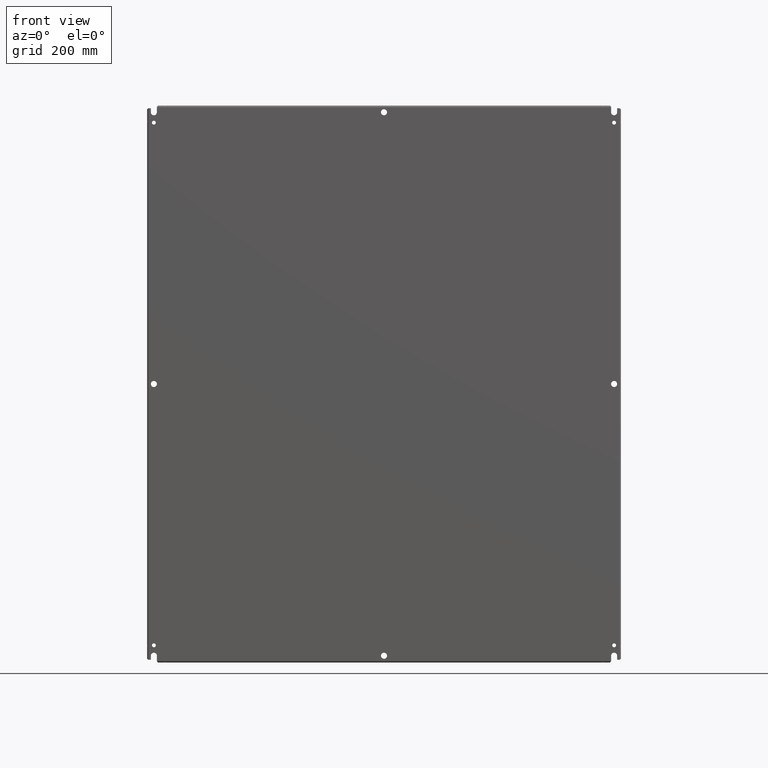
[diagram: clean part render]
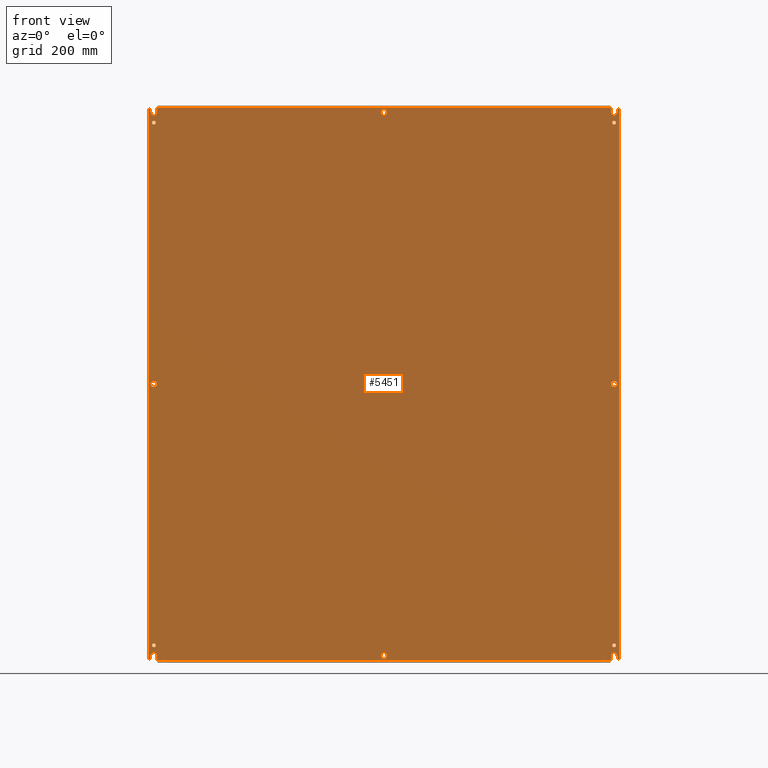
[diagram: same view with one face highlighted and labeled with its STEP entity id]
A machine part, front view. The second image highlights one B-rep face of the part: STEP entity #5451.
In plain terms, the highlighted planar face has unit normal (0, 1, 0).
Its self-contained STEP definition (entity closure, byte-faithful):
#11 = AXIS2_PLACEMENT_3D ( 'NONE', #6834, #5093, #7462 ) ;
#12 = FACE_OUTER_BOUND ( 'NONE', #5309, .T. ) ;
#63 = DIRECTION ( 'NONE',  ( 0.0000000000000000000, 0.0000000000000000000, -1.000000000000000000 ) ) ;
#87 = CARTESIAN_POINT ( 'NONE',  ( -16.37525000000000119, 0.0000000000000000000, 19.59400000000000119 ) ) ;
#89 = EDGE_CURVE ( 'NONE', #790, #6141, #5881, .T. ) ;
#97 = CARTESIAN_POINT ( 'NONE',  ( -16.59400000000000119, 0.0000000000000000000, -18.70350000000000179 ) ) ;
#124 = ORIENTED_EDGE ( 'NONE', *, *, #6076, .T. ) ;
#132 = VERTEX_POINT ( 'NONE', #561 ) ;
#134 = VERTEX_POINT ( 'NONE', #3231 ) ;
#164 = VERTEX_POINT ( 'NONE', #4659 ) ;
#166 = EDGE_LOOP ( 'NONE', ( #3111, #3925 ) ) ;
#178 = VECTOR ( 'NONE', #272, 39.37007874015748143 ) ;
#183 = LINE ( 'NONE', #3987, #6844 ) ;
#195 = DIRECTION ( 'NONE',  ( 0.0000000000000000000, 0.0000000000000000000, -1.000000000000000000 ) ) ;
#206 = VECTOR ( 'NONE', #7672, 39.37007874015748143 ) ;
#216 = LINE ( 'NONE', #6751, #4275 ) ;
#219 = CARTESIAN_POINT ( 'NONE',  ( 16.59400000000000119, 0.0000000000000000000, 0.0000000000000000000 ) ) ;
#220 = CARTESIAN_POINT ( 'NONE',  ( 16.94200000000000017, 0.0000000000000000000, 19.88800000000000168 ) ) ;
#230 = DIRECTION ( 'NONE',  ( 1.000000000000000000, 0.0000000000000000000, -0.0000000000000000000 ) ) ;
#234 = AXIS2_PLACEMENT_3D ( 'NONE', #609, #3090, #63 ) ;
#272 = DIRECTION ( 'NONE',  ( -7.433599982759880305E-15, 0.0000000000000000000, 1.000000000000000000 ) ) ;
#277 = AXIS2_PLACEMENT_3D ( 'NONE', #6103, #5512, #4932 ) ;
#320 = ORIENTED_EDGE ( 'NONE', *, *, #3875, .F. ) ;
#456 = VERTEX_POINT ( 'NONE', #1218 ) ;
#462 = DIRECTION ( 'NONE',  ( 0.0000000000000000000, 0.0000000000000000000, -1.000000000000000000 ) ) ;
#502 = VECTOR ( 'NONE', #3811, 39.37007874015748143 ) ;
#504 = CARTESIAN_POINT ( 'NONE',  ( 0.0000000000000000000, 0.0000000000000000000, -19.59400000000000119 ) ) ;
#508 = CIRCLE ( 'NONE', #2968, 0.2187500000000000278 ) ;
#523 = CARTESIAN_POINT ( 'NONE',  ( 16.37525000000000119, 0.0000000000000000000, -19.94199999999999662 ) ) ;
#542 = DIRECTION ( 'NONE',  ( 0.0000000000000000000, 1.000000000000000000, 0.0000000000000000000 ) ) ;
#561 = CARTESIAN_POINT ( 'NONE',  ( 16.59400000000000119, 0.0000000000000000000, -18.70350000000000179 ) ) ;
#609 = CARTESIAN_POINT ( 'NONE',  ( 0.0000000000000000000, 0.0000000000000000000, 19.59400000000000119 ) ) ;
#615 = VERTEX_POINT ( 'NONE', #5770 ) ;
#645 = ORIENTED_EDGE ( 'NONE', *, *, #5179, .T. ) ;
#698 = CIRCLE ( 'NONE', #2703, 0.1404999999999992366 ) ;
#730 = ORIENTED_EDGE ( 'NONE', *, *, #5210, .T. ) ;
#760 = EDGE_CURVE ( 'NONE', #790, #615, #2877, .T. ) ;
#790 = VERTEX_POINT ( 'NONE', #523 ) ;
#794 = FACE_BOUND ( 'NONE', #4607, .T. ) ;
#847 = ORIENTED_EDGE ( 'NONE', *, *, #3485, .T. ) ;
#915 = DIRECTION ( 'NONE',  ( 0.0000000000000000000, -0.0000000000000000000, 1.000000000000000000 ) ) ;
#932 = DIRECTION ( 'NONE',  ( -1.000000000000000000, 0.0000000000000000000, -0.0000000000000000000 ) ) ;
#996 = VERTEX_POINT ( 'NONE', #220 ) ;
#1021 = CIRCLE ( 'NONE', #2345, 0.2187499999999994171 ) ;
#1026 = EDGE_LOOP ( 'NONE', ( #2577, #5813 ) ) ;
#1030 = ORIENTED_EDGE ( 'NONE', *, *, #89, .T. ) ;
#1051 = CIRCLE ( 'NONE', #6636, 0.1404999999999992366 ) ;
#1072 = EDGE_CURVE ( 'NONE', #5630, #1235, #2994, .T. ) ;
#1073 = LINE ( 'NONE', #2778, #5516 ) ;
#1088 = VERTEX_POINT ( 'NONE', #7545 ) ;
#1094 = ORIENTED_EDGE ( 'NONE', *, *, #4189, .T. ) ;
#1129 = CARTESIAN_POINT ( 'NONE',  ( 16.37525000000000119, 0.0000000000000000000, -19.59400000000000119 ) ) ;
#1167 = LINE ( 'NONE', #7617, #206 ) ;
#1180 = CIRCLE ( 'NONE', #5368, 0.2187500000000015821 ) ;
#1187 = EDGE_CURVE ( 'NONE', #996, #1854, #1167, .T. ) ;
#1211 = CARTESIAN_POINT ( 'NONE',  ( -17.08500000000000085, 0.0000000000000000000, -19.88800000000000168 ) ) ;
#1218 = CARTESIAN_POINT ( 'NONE',  ( 2.678914873134843076E-17, 0.0000000000000000000, -19.37525000000000119 ) ) ;
#1228 = EDGE_CURVE ( 'NONE', #1235, #1854, #1923, .T. ) ;
#1229 = DIRECTION ( 'NONE',  ( -0.0000000000000000000, 1.000000000000000000, -0.0000000000000000000 ) ) ;
#1235 = VERTEX_POINT ( 'NONE', #6502 ) ;
#1238 = VECTOR ( 'NONE', #7438, 39.37007874015748143 ) ;
#1288 = AXIS2_PLACEMENT_3D ( 'NONE', #7610, #7058, #5751 ) ;
#1289 = EDGE_LOOP ( 'NONE', ( #1383, #2755 ) ) ;
#1290 = PLANE ( 'NONE',  #1874 ) ;
#1364 = FACE_BOUND ( 'NONE', #7323, .T. ) ;
#1374 = DIRECTION ( 'NONE',  ( 0.0000000000000000000, 1.000000000000000000, 0.0000000000000000000 ) ) ;
#1383 = ORIENTED_EDGE ( 'NONE', *, *, #1436, .T. ) ;
#1397 = VERTEX_POINT ( 'NONE', #87 ) ;
#1436 = EDGE_CURVE ( 'NONE', #3259, #132, #4363, .T. ) ;
#1442 = CIRCLE ( 'NONE', #234, 0.2187499999999994171 ) ;
#1446 = DIRECTION ( 'NONE',  ( 7.433599982759880305E-15, 0.0000000000000000000, -1.000000000000000000 ) ) ;
#1472 = EDGE_LOOP ( 'NONE', ( #2717, #4915 ) ) ;
#1504 = CARTESIAN_POINT ( 'NONE',  ( -16.81275000000000119, 0.0000000000000000000, -19.59400000000000119 ) ) ;
#1525 = VECTOR ( 'NONE', #4568, 39.37007874015748143 ) ;
#1529 = EDGE_CURVE ( 'NONE', #5540, #2328, #3418, .T. ) ;
#1666 = CARTESIAN_POINT ( 'NONE',  ( 16.59400000000000119, 0.0000000000000000000, -19.37525000000000119 ) ) ;
#1731 = DIRECTION ( 'NONE',  ( 0.0000000000000000000, 1.000000000000000000, 0.0000000000000000000 ) ) ;
#1736 = CARTESIAN_POINT ( 'NONE',  ( 16.59400000000000119, 0.0000000000000000000, 18.98450000000000060 ) ) ;
#1775 = DIRECTION ( 'NONE',  ( 0.0000000000000000000, 1.000000000000000000, 0.0000000000000000000 ) ) ;
#1841 = EDGE_CURVE ( 'NONE', #2784, #164, #5677, .T. ) ;
#1854 = VERTEX_POINT ( 'NONE', #4439 ) ;
#1874 = AXIS2_PLACEMENT_3D ( 'NONE', #3869, #6900, #915 ) ;
#1881 = EDGE_CURVE ( 'NONE', #4673, #5318, #3319, .T. ) ;
#1910 = CARTESIAN_POINT ( 'NONE',  ( -16.59400000000000119, 0.0000000000000000000, 18.70350000000000179 ) ) ;
#1913 = DIRECTION ( 'NONE',  ( -0.0000000000000000000, 1.000000000000000000, -0.0000000000000000000 ) ) ;
#1923 = LINE ( 'NONE', #3015, #5219 ) ;
#1955 = CARTESIAN_POINT ( 'NONE',  ( -16.81275000000000119, 0.0000000000000000000, 19.88800000000000168 ) ) ;
#1981 = CARTESIAN_POINT ( 'NONE',  ( 16.59400000000000119, 0.0000000000000000000, 0.0000000000000000000 ) ) ;
#2011 = FACE_BOUND ( 'NONE', #1026, .T. ) ;
#2026 = ORIENTED_EDGE ( 'NONE', *, *, #2415, .T. ) ;
#2070 = EDGE_CURVE ( 'NONE', #6206, #3264, #1051, .T. ) ;
#2105 = AXIS2_PLACEMENT_3D ( 'NONE', #504, #1731, #4160 ) ;
#2157 = DIRECTION ( 'NONE',  ( -7.433599982759880305E-15, 0.0000000000000000000, -1.000000000000000000 ) ) ;
#2186 = ORIENTED_EDGE ( 'NONE', *, *, #7113, .T. ) ;
#2192 = CIRCLE ( 'NONE', #5626, 0.1404999999999992366 ) ;
#2305 = EDGE_CURVE ( 'NONE', #132, #3259, #2727, .T. ) ;
#2328 = VERTEX_POINT ( 'NONE', #2359 ) ;
#2345 = AXIS2_PLACEMENT_3D ( 'NONE', #2402, #6772, #2427 ) ;
#2359 = CARTESIAN_POINT ( 'NONE',  ( 16.59400000000000119, 0.0000000000000000000, 0.2187500000000000278 ) ) ;
#2381 = FACE_BOUND ( 'NONE', #1289, .T. ) ;
#2393 = DIRECTION ( 'NONE',  ( 0.0000000000000000000, 0.0000000000000000000, 1.000000000000000000 ) ) ;
#2399 = CARTESIAN_POINT ( 'NONE',  ( 0.0000000000000000000, 0.0000000000000000000, -19.81275000000000119 ) ) ;
#2402 = CARTESIAN_POINT ( 'NONE',  ( -16.59400000000000119, 0.0000000000000000000, -19.59400000000000119 ) ) ;
#2415 = EDGE_CURVE ( 'NONE', #6141, #3617, #4923, .T. ) ;
#2427 = DIRECTION ( 'NONE',  ( 0.0000000000000000000, 0.0000000000000000000, 1.000000000000000000 ) ) ;
#2520 = VERTEX_POINT ( 'NONE', #3014 ) ;
#2532 = CARTESIAN_POINT ( 'NONE',  ( -16.59400000000000119, 0.0000000000000000000, 18.84400000000000119 ) ) ;
#2577 = ORIENTED_EDGE ( 'NONE', *, *, #5826, .T. ) ;
#2586 = CARTESIAN_POINT ( 'NONE',  ( 16.81275000000000119, 0.0000000000000000000, 19.88800000000000168 ) ) ;
#2604 = VECTOR ( 'NONE', #1446, 39.37007874015748143 ) ;
#2606 = EDGE_CURVE ( 'NONE', #7196, #5041, #1073, .T. ) ;
#2656 = VECTOR ( 'NONE', #230, 39.37007874015748143 ) ;
#2676 = DIRECTION ( 'NONE',  ( 7.433599982759880305E-15, 0.0000000000000000000, 1.000000000000000000 ) ) ;
#2703 = AXIS2_PLACEMENT_3D ( 'NONE', #6781, #3128, #7381 ) ;
#2717 = ORIENTED_EDGE ( 'NONE', *, *, #6456, .T. ) ;
#2727 = CIRCLE ( 'NONE', #3366, 0.1404999999999992366 ) ;
#2755 = ORIENTED_EDGE ( 'NONE', *, *, #2305, .T. ) ;
#2773 = EDGE_LOOP ( 'NONE', ( #730, #4871 ) ) ;
#2778 = CARTESIAN_POINT ( 'NONE',  ( 16.81275000000000119, 0.0000000000000000000, 19.59400000000000119 ) ) ;
#2784 = VERTEX_POINT ( 'NONE', #5932 ) ;
#2833 = CARTESIAN_POINT ( 'NONE',  ( -16.81275000000000119, 0.0000000000000000000, -19.59400000000000119 ) ) ;
#2877 = LINE ( 'NONE', #5380, #6022 ) ;
#2879 = CARTESIAN_POINT ( 'NONE',  ( 0.0000000000000000000, 0.0000000000000000000, 19.59400000000000119 ) ) ;
#2913 = DIRECTION ( 'NONE',  ( 0.0000000000000000000, 1.000000000000000000, 0.0000000000000000000 ) ) ;
#2928 = CARTESIAN_POINT ( 'NONE',  ( 16.59400000000000119, 0.0000000000000000000, 18.84400000000000119 ) ) ;
#2957 = CARTESIAN_POINT ( 'NONE',  ( -16.94200000000000017, 0.0000000000000000000, 19.88800000000000168 ) ) ;
#2959 = ORIENTED_EDGE ( 'NONE', *, *, #1529, .T. ) ;
#2961 = CIRCLE ( 'NONE', #7155, 0.2187499999999994171 ) ;
#2967 = CARTESIAN_POINT ( 'NONE',  ( 16.81275000000000119, 0.0000000000000000000, 19.88800000000000168 ) ) ;
#2968 = AXIS2_PLACEMENT_3D ( 'NONE', #1981, #3817, #195 ) ;
#2970 = ORIENTED_EDGE ( 'NONE', *, *, #7459, .T. ) ;
#2986 = DIRECTION ( 'NONE',  ( 0.0000000000000000000, 0.0000000000000000000, 1.000000000000000000 ) ) ;
#2994 = LINE ( 'NONE', #5661, #2604 ) ;
#3014 = CARTESIAN_POINT ( 'NONE',  ( -16.37525000000000119, 0.0000000000000000000, -19.59400000000000119 ) ) ;
#3015 = CARTESIAN_POINT ( 'NONE',  ( 17.08500000000000085, 0.0000000000000000000, -19.88800000000000168 ) ) ;
#3021 = CIRCLE ( 'NONE', #5465, 0.2187499999999994171 ) ;
#3081 = DIRECTION ( 'NONE',  ( 0.0000000000000000000, 0.0000000000000000000, -1.000000000000000000 ) ) ;
#3089 = DIRECTION ( 'NONE',  ( 0.0000000000000000000, 0.0000000000000000000, 1.000000000000000000 ) ) ;
#3090 = DIRECTION ( 'NONE',  ( 0.0000000000000000000, 1.000000000000000000, 0.0000000000000000000 ) ) ;
#3111 = ORIENTED_EDGE ( 'NONE', *, *, #1841, .T. ) ;
#3128 = DIRECTION ( 'NONE',  ( 0.0000000000000000000, 1.000000000000000000, 0.0000000000000000000 ) ) ;
#3167 = ORIENTED_EDGE ( 'NONE', *, *, #3934, .T. ) ;
#3231 = CARTESIAN_POINT ( 'NONE',  ( -16.81275000000000119, 0.0000000000000000000, -19.88800000000000168 ) ) ;
#3251 = CARTESIAN_POINT ( 'NONE',  ( 0.0000000000000000000, 0.0000000000000000000, 19.37525000000000119 ) ) ;
#3259 = VERTEX_POINT ( 'NONE', #7854 ) ;
#3264 = VERTEX_POINT ( 'NONE', #3597 ) ;
#3288 = VERTEX_POINT ( 'NONE', #97 ) ;
#3298 = VERTEX_POINT ( 'NONE', #1910 ) ;
#3319 = LINE ( 'NONE', #6890, #5501 ) ;
#3323 = CARTESIAN_POINT ( 'NONE',  ( 16.59400000000000119, 0.0000000000000000000, -19.59400000000000119 ) ) ;
#3358 = ORIENTED_EDGE ( 'NONE', *, *, #4033, .T. ) ;
#3366 = AXIS2_PLACEMENT_3D ( 'NONE', #7126, #1775, #462 ) ;
#3377 = ORIENTED_EDGE ( 'NONE', *, *, #6355, .T. ) ;
#3418 = CIRCLE ( 'NONE', #5284, 0.2187500000000000278 ) ;
#3485 = EDGE_CURVE ( 'NONE', #134, #5067, #7304, .T. ) ;
#3560 = VERTEX_POINT ( 'NONE', #5104 ) ;
#3597 = CARTESIAN_POINT ( 'NONE',  ( 16.59400000000000119, 0.0000000000000000000, 18.70350000000000179 ) ) ;
#3617 = VERTEX_POINT ( 'NONE', #1666 ) ;
#3618 = FACE_BOUND ( 'NONE', #1472, .T. ) ;
#3624 = AXIS2_PLACEMENT_3D ( 'NONE', #3813, #4496, #5137 ) ;
#3629 = DIRECTION ( 'NONE',  ( 1.000000000000000000, 0.0000000000000000000, -0.0000000000000000000 ) ) ;
#3654 = VERTEX_POINT ( 'NONE', #4018 ) ;
#3784 = EDGE_CURVE ( 'NONE', #7762, #3298, #4616, .T. ) ;
#3790 = CARTESIAN_POINT ( 'NONE',  ( -16.59400000000000119, 0.0000000000000000000, 18.98450000000000060 ) ) ;
#3793 = CIRCLE ( 'NONE', #1288, 0.2187500000000015821 ) ;
#3811 = DIRECTION ( 'NONE',  ( -1.000000000000000000, 0.0000000000000000000, -0.0000000000000000000 ) ) ;
#3813 = CARTESIAN_POINT ( 'NONE',  ( -16.59400000000000119, 0.0000000000000000000, 0.0000000000000000000 ) ) ;
#3817 = DIRECTION ( 'NONE',  ( 0.0000000000000000000, 1.000000000000000000, 0.0000000000000000000 ) ) ;
#3821 = AXIS2_PLACEMENT_3D ( 'NONE', #3323, #5774, #4048 ) ;
#3858 = DIRECTION ( 'NONE',  ( 0.0000000000000000000, 0.0000000000000000000, -1.000000000000000000 ) ) ;
#3869 = CARTESIAN_POINT ( 'NONE',  ( -17.66400000000000148, 0.0000000000000000000, 20.66399999999999793 ) ) ;
#3875 = EDGE_CURVE ( 'NONE', #7173, #5318, #6338, .T. ) ;
#3925 = ORIENTED_EDGE ( 'NONE', *, *, #5110, .T. ) ;
#3934 = EDGE_CURVE ( 'NONE', #996, #7196, #5511, .T. ) ;
#3987 = CARTESIAN_POINT ( 'NONE',  ( 16.37525000000000119, 0.0000000000000000000, 20.08500000000000085 ) ) ;
#3995 = ORIENTED_EDGE ( 'NONE', *, *, #1072, .T. ) ;
#4018 = CARTESIAN_POINT ( 'NONE',  ( -16.59400000000000119, 0.0000000000000000000, -19.37525000000000119 ) ) ;
#4033 = EDGE_CURVE ( 'NONE', #3654, #2520, #1021, .T. ) ;
#4048 = DIRECTION ( 'NONE',  ( 0.0000000000000000000, 0.0000000000000000000, 1.000000000000000000 ) ) ;
#4076 = ORIENTED_EDGE ( 'NONE', *, *, #2606, .T. ) ;
#4079 = CIRCLE ( 'NONE', #277, 0.2187500000000000278 ) ;
#4116 = CARTESIAN_POINT ( 'NONE',  ( -16.59400000000000119, 0.0000000000000000000, 18.84400000000000119 ) ) ;
#4118 = ORIENTED_EDGE ( 'NONE', *, *, #4433, .T. ) ;
#4120 = ORIENTED_EDGE ( 'NONE', *, *, #5474, .F. ) ;
#4138 = DIRECTION ( 'NONE',  ( 1.000000000000000000, 0.0000000000000000000, -0.0000000000000000000 ) ) ;
#4160 = DIRECTION ( 'NONE',  ( 0.0000000000000000000, 0.0000000000000000000, -1.000000000000000000 ) ) ;
#4189 = EDGE_CURVE ( 'NONE', #1397, #5833, #6417, .T. ) ;
#4190 = DIRECTION ( 'NONE',  ( 0.0000000000000000000, 1.000000000000000000, 0.0000000000000000000 ) ) ;
#4217 = DIRECTION ( 'NONE',  ( -0.0000000000000000000, 1.000000000000000000, -0.0000000000000000000 ) ) ;
#4240 = CARTESIAN_POINT ( 'NONE',  ( -16.59400000000000119, 0.0000000000000000000, -19.59400000000000119 ) ) ;
#4266 = LINE ( 'NONE', #5500, #2656 ) ;
#4275 = VECTOR ( 'NONE', #3081, 39.37007874015748143 ) ;
#4300 = ORIENTED_EDGE ( 'NONE', *, *, #6780, .T. ) ;
#4326 = CARTESIAN_POINT ( 'NONE',  ( -16.59400000000000119, 0.0000000000000000000, 19.59400000000000119 ) ) ;
#4347 = CIRCLE ( 'NONE', #4640, 0.1404999999999992366 ) ;
#4363 = CIRCLE ( 'NONE', #11, 0.1404999999999992366 ) ;
#4433 = EDGE_CURVE ( 'NONE', #3617, #5630, #6130, .T. ) ;
#4437 = CARTESIAN_POINT ( 'NONE',  ( -16.94200000000000017, 0.0000000000000000000, 20.66399999999999793 ) ) ;
#4439 = CARTESIAN_POINT ( 'NONE',  ( 16.94200000000000017, 0.0000000000000000000, -19.88800000000000168 ) ) ;
#4496 = DIRECTION ( 'NONE',  ( 0.0000000000000000000, 1.000000000000000000, 0.0000000000000000000 ) ) ;
#4568 = DIRECTION ( 'NONE',  ( 0.0000000000000000000, 0.0000000000000000000, -1.000000000000000000 ) ) ;
#4607 = EDGE_LOOP ( 'NONE', ( #6240, #2186 ) ) ;
#4616 = CIRCLE ( 'NONE', #7709, 0.1404999999999992366 ) ;
#4640 = AXIS2_PLACEMENT_3D ( 'NONE', #7855, #4842, #4762 ) ;
#4659 = CARTESIAN_POINT ( 'NONE',  ( -16.59400000000000119, 0.0000000000000000000, 0.2187500000000000278 ) ) ;
#4673 = VERTEX_POINT ( 'NONE', #7822 ) ;
#4677 = VERTEX_POINT ( 'NONE', #7193 ) ;
#4743 = DIRECTION ( 'NONE',  ( 0.0000000000000000000, 0.0000000000000000000, -1.000000000000000000 ) ) ;
#4762 = DIRECTION ( 'NONE',  ( 0.0000000000000000000, 0.0000000000000000000, -1.000000000000000000 ) ) ;
#4790 = DIRECTION ( 'NONE',  ( 0.0000000000000000000, 0.0000000000000000000, -1.000000000000000000 ) ) ;
#4842 = DIRECTION ( 'NONE',  ( 0.0000000000000000000, 1.000000000000000000, 0.0000000000000000000 ) ) ;
#4871 = ORIENTED_EDGE ( 'NONE', *, *, #6605, .T. ) ;
#4915 = ORIENTED_EDGE ( 'NONE', *, *, #2070, .T. ) ;
#4920 = EDGE_CURVE ( 'NONE', #2328, #5540, #508, .T. ) ;
#4921 = LINE ( 'NONE', #1955, #178 ) ;
#4923 = CIRCLE ( 'NONE', #6280, 0.2187499999999994171 ) ;
#4932 = DIRECTION ( 'NONE',  ( 0.0000000000000000000, 0.0000000000000000000, -1.000000000000000000 ) ) ;
#4933 = LINE ( 'NONE', #7560, #1525 ) ;
#4978 = ORIENTED_EDGE ( 'NONE', *, *, #1881, .T. ) ;
#5041 = VERTEX_POINT ( 'NONE', #5928 ) ;
#5046 = FACE_BOUND ( 'NONE', #2773, .T. ) ;
#5067 = VERTEX_POINT ( 'NONE', #2833 ) ;
#5093 = DIRECTION ( 'NONE',  ( 0.0000000000000000000, 1.000000000000000000, 0.0000000000000000000 ) ) ;
#5104 = CARTESIAN_POINT ( 'NONE',  ( 16.37525000000000119, 0.0000000000000000000, 19.94199999999999662 ) ) ;
#5110 = EDGE_CURVE ( 'NONE', #164, #2784, #4079, .T. ) ;
#5137 = DIRECTION ( 'NONE',  ( 0.0000000000000000000, 0.0000000000000000000, -1.000000000000000000 ) ) ;
#5179 = EDGE_CURVE ( 'NONE', #2520, #615, #216, .T. ) ;
#5210 = EDGE_CURVE ( 'NONE', #4677, #3288, #698, .T. ) ;
#5219 = VECTOR ( 'NONE', #3629, 39.37007874015748143 ) ;
#5266 = EDGE_CURVE ( 'NONE', #1088, #5556, #2961, .T. ) ;
#5284 = AXIS2_PLACEMENT_3D ( 'NONE', #219, #5616, #3858 ) ;
#5309 = EDGE_LOOP ( 'NONE', ( #7255, #1030, #2026, #4118, #3995, #5886, #5899, #3167, #4076, #7627, #124, #4120, #2970, #1094, #4300, #4978, #320, #3377, #847, #5455, #3358, #645 ) ) ;
#5318 = VERTEX_POINT ( 'NONE', #2957 ) ;
#5351 = DIRECTION ( 'NONE',  ( 0.0000000000000000000, 0.0000000000000000000, -1.000000000000000000 ) ) ;
#5364 = EDGE_CURVE ( 'NONE', #6390, #456, #7715, .T. ) ;
#5368 = AXIS2_PLACEMENT_3D ( 'NONE', #6639, #542, #5351 ) ;
#5380 = CARTESIAN_POINT ( 'NONE',  ( -17.66400000000000148, 0.0000000000000000000, -19.94199999999999662 ) ) ;
#5440 = CARTESIAN_POINT ( 'NONE',  ( 16.59400000000000119, 0.0000000000000000000, -19.59400000000000119 ) ) ;
#5441 = CARTESIAN_POINT ( 'NONE',  ( -16.81275000000000119, 0.0000000000000000000, 19.59400000000000119 ) ) ;
#5451 = ADVANCED_FACE ( 'NONE', ( #12, #5046, #2381, #6191, #3618, #6083, #1364, #2011, #794 ), #1290, .F. ) ;
#5455 = ORIENTED_EDGE ( 'NONE', *, *, #6492, .T. ) ;
#5465 = AXIS2_PLACEMENT_3D ( 'NONE', #4240, #4217, #2986 ) ;
#5474 = EDGE_CURVE ( 'NONE', #6778, #3560, #4266, .T. ) ;
#5490 = DIRECTION ( 'NONE',  ( 0.0000000000000000000, 0.0000000000000000000, -1.000000000000000000 ) ) ;
#5497 = CIRCLE ( 'NONE', #6910, 0.1404999999999992366 ) ;
#5500 = CARTESIAN_POINT ( 'NONE',  ( -17.66400000000000148, 0.0000000000000000000, 19.94199999999999662 ) ) ;
#5501 = VECTOR ( 'NONE', #932, 39.37007874015748143 ) ;
#5511 = LINE ( 'NONE', #2586, #502 ) ;
#5512 = DIRECTION ( 'NONE',  ( 0.0000000000000000000, 1.000000000000000000, 0.0000000000000000000 ) ) ;
#5516 = VECTOR ( 'NONE', #2157, 39.37007874015748143 ) ;
#5540 = VERTEX_POINT ( 'NONE', #6277 ) ;
#5556 = VERTEX_POINT ( 'NONE', #3251 ) ;
#5616 = DIRECTION ( 'NONE',  ( 0.0000000000000000000, 1.000000000000000000, 0.0000000000000000000 ) ) ;
#5626 = AXIS2_PLACEMENT_3D ( 'NONE', #4116, #2913, #4743 ) ;
#5630 = VERTEX_POINT ( 'NONE', #6460 ) ;
#5661 = CARTESIAN_POINT ( 'NONE',  ( 16.81275000000000119, 0.0000000000000000000, -19.88800000000000168 ) ) ;
#5677 = CIRCLE ( 'NONE', #3624, 0.2187500000000000278 ) ;
#5751 = DIRECTION ( 'NONE',  ( 0.0000000000000000000, 0.0000000000000000000, 1.000000000000000000 ) ) ;
#5770 = CARTESIAN_POINT ( 'NONE',  ( -16.37525000000000119, 0.0000000000000000000, -19.94199999999999662 ) ) ;
#5774 = DIRECTION ( 'NONE',  ( -0.0000000000000000000, 1.000000000000000000, -0.0000000000000000000 ) ) ;
#5787 = CARTESIAN_POINT ( 'NONE',  ( 16.37525000000000119, 0.0000000000000000000, 19.59400000000000119 ) ) ;
#5813 = ORIENTED_EDGE ( 'NONE', *, *, #5266, .T. ) ;
#5815 = DIRECTION ( 'NONE',  ( 0.0000000000000000000, 0.0000000000000000000, 1.000000000000000000 ) ) ;
#5826 = EDGE_CURVE ( 'NONE', #5556, #1088, #1442, .T. ) ;
#5833 = VERTEX_POINT ( 'NONE', #5441 ) ;
#5881 = LINE ( 'NONE', #7291, #7337 ) ;
#5886 = ORIENTED_EDGE ( 'NONE', *, *, #1228, .T. ) ;
#5899 = ORIENTED_EDGE ( 'NONE', *, *, #1187, .F. ) ;
#5928 = CARTESIAN_POINT ( 'NONE',  ( 16.81275000000000119, 0.0000000000000000000, 19.59400000000000119 ) ) ;
#5932 = CARTESIAN_POINT ( 'NONE',  ( -16.59400000000000119, 0.0000000000000000000, -0.2187500000000000278 ) ) ;
#5998 = ORIENTED_EDGE ( 'NONE', *, *, #3784, .T. ) ;
#5999 = DIRECTION ( 'NONE',  ( 0.0000000000000000000, 0.0000000000000000000, -1.000000000000000000 ) ) ;
#6022 = VECTOR ( 'NONE', #6054, 39.37007874015748143 ) ;
#6054 = DIRECTION ( 'NONE',  ( -1.000000000000000000, -0.0000000000000000000, 0.0000000000000000000 ) ) ;
#6076 = EDGE_CURVE ( 'NONE', #6974, #3560, #183, .T. ) ;
#6083 = FACE_BOUND ( 'NONE', #166, .T. ) ;
#6103 = CARTESIAN_POINT ( 'NONE',  ( -16.59400000000000119, 0.0000000000000000000, 0.0000000000000000000 ) ) ;
#6122 = DIRECTION ( 'NONE',  ( 0.0000000000000000000, 0.0000000000000000000, 1.000000000000000000 ) ) ;
#6130 = CIRCLE ( 'NONE', #3821, 0.2187499999999994171 ) ;
#6141 = VERTEX_POINT ( 'NONE', #1129 ) ;
#6191 = FACE_BOUND ( 'NONE', #7445, .T. ) ;
#6206 = VERTEX_POINT ( 'NONE', #1736 ) ;
#6240 = ORIENTED_EDGE ( 'NONE', *, *, #5364, .T. ) ;
#6277 = CARTESIAN_POINT ( 'NONE',  ( 16.59400000000000119, 0.0000000000000000000, -0.2187500000000000278 ) ) ;
#6280 = AXIS2_PLACEMENT_3D ( 'NONE', #5440, #1229, #3089 ) ;
#6304 = ORIENTED_EDGE ( 'NONE', *, *, #4920, .T. ) ;
#6338 = LINE ( 'NONE', #4437, #1238 ) ;
#6355 = EDGE_CURVE ( 'NONE', #7173, #134, #6649, .T. ) ;
#6390 = VERTEX_POINT ( 'NONE', #2399 ) ;
#6417 = CIRCLE ( 'NONE', #7652, 0.2187500000000015821 ) ;
#6428 = ORIENTED_EDGE ( 'NONE', *, *, #7100, .T. ) ;
#6455 = VECTOR ( 'NONE', #4138, 39.37007874015748143 ) ;
#6456 = EDGE_CURVE ( 'NONE', #3264, #6206, #4347, .T. ) ;
#6460 = CARTESIAN_POINT ( 'NONE',  ( 16.81275000000000119, 0.0000000000000000000, -19.59400000000000119 ) ) ;
#6492 = EDGE_CURVE ( 'NONE', #5067, #3654, #3021, .T. ) ;
#6502 = CARTESIAN_POINT ( 'NONE',  ( 16.81275000000000119, 0.0000000000000000000, -19.88800000000000168 ) ) ;
#6512 = CARTESIAN_POINT ( 'NONE',  ( -16.59400000000000119, 0.0000000000000000000, -18.84400000000000119 ) ) ;
#6601 = DIRECTION ( 'NONE',  ( 0.0000000000000000000, 1.000000000000000000, 0.0000000000000000000 ) ) ;
#6605 = EDGE_CURVE ( 'NONE', #3288, #4677, #5497, .T. ) ;
#6636 = AXIS2_PLACEMENT_3D ( 'NONE', #2928, #7217, #4790 ) ;
#6639 = CARTESIAN_POINT ( 'NONE',  ( 0.0000000000000000000, 0.0000000000000000000, -19.59400000000000119 ) ) ;
#6649 = LINE ( 'NONE', #1211, #6455 ) ;
#6751 = CARTESIAN_POINT ( 'NONE',  ( -16.37525000000000119, 0.0000000000000000000, -19.59400000000000119 ) ) ;
#6772 = DIRECTION ( 'NONE',  ( -0.0000000000000000000, 1.000000000000000000, -0.0000000000000000000 ) ) ;
#6778 = VERTEX_POINT ( 'NONE', #7621 ) ;
#6780 = EDGE_CURVE ( 'NONE', #5833, #4673, #4921, .T. ) ;
#6781 = CARTESIAN_POINT ( 'NONE',  ( -16.59400000000000119, 0.0000000000000000000, -18.84400000000000119 ) ) ;
#6834 = CARTESIAN_POINT ( 'NONE',  ( 16.59400000000000119, 0.0000000000000000000, -18.84400000000000119 ) ) ;
#6844 = VECTOR ( 'NONE', #5815, 39.37007874015748143 ) ;
#6890 = CARTESIAN_POINT ( 'NONE',  ( -17.08500000000000085, 0.0000000000000000000, 19.88800000000000168 ) ) ;
#6900 = DIRECTION ( 'NONE',  ( 0.0000000000000000000, 1.000000000000000000, 0.0000000000000000000 ) ) ;
#6910 = AXIS2_PLACEMENT_3D ( 'NONE', #6512, #6601, #5999 ) ;
#6974 = VERTEX_POINT ( 'NONE', #5787 ) ;
#7058 = DIRECTION ( 'NONE',  ( -0.0000000000000000000, 1.000000000000000000, -0.0000000000000000000 ) ) ;
#7100 = EDGE_CURVE ( 'NONE', #3298, #7762, #2192, .T. ) ;
#7113 = EDGE_CURVE ( 'NONE', #456, #6390, #1180, .T. ) ;
#7126 = CARTESIAN_POINT ( 'NONE',  ( 16.59400000000000119, 0.0000000000000000000, -18.84400000000000119 ) ) ;
#7155 = AXIS2_PLACEMENT_3D ( 'NONE', #2879, #4190, #7769 ) ;
#7173 = VERTEX_POINT ( 'NONE', #7889 ) ;
#7193 = CARTESIAN_POINT ( 'NONE',  ( -16.59400000000000119, 0.0000000000000000000, -18.98450000000000060 ) ) ;
#7196 = VERTEX_POINT ( 'NONE', #2967 ) ;
#7217 = DIRECTION ( 'NONE',  ( 0.0000000000000000000, 1.000000000000000000, 0.0000000000000000000 ) ) ;
#7255 = ORIENTED_EDGE ( 'NONE', *, *, #760, .F. ) ;
#7291 = CARTESIAN_POINT ( 'NONE',  ( 16.37525000000000119, 0.0000000000000000000, -19.59400000000000119 ) ) ;
#7304 = LINE ( 'NONE', #1504, #7587 ) ;
#7323 = EDGE_LOOP ( 'NONE', ( #2959, #6304 ) ) ;
#7337 = VECTOR ( 'NONE', #2393, 39.37007874015748143 ) ;
#7377 = EDGE_CURVE ( 'NONE', #5041, #6974, #3793, .T. ) ;
#7381 = DIRECTION ( 'NONE',  ( 0.0000000000000000000, 0.0000000000000000000, -1.000000000000000000 ) ) ;
#7438 = DIRECTION ( 'NONE',  ( 0.0000000000000000000, -0.0000000000000000000, 1.000000000000000000 ) ) ;
#7445 = EDGE_LOOP ( 'NONE', ( #6428, #5998 ) ) ;
#7459 = EDGE_CURVE ( 'NONE', #6778, #1397, #4933, .T. ) ;
#7462 = DIRECTION ( 'NONE',  ( 0.0000000000000000000, 0.0000000000000000000, -1.000000000000000000 ) ) ;
#7545 = CARTESIAN_POINT ( 'NONE',  ( 2.678914873134816267E-17, 0.0000000000000000000, 19.81275000000000119 ) ) ;
#7560 = CARTESIAN_POINT ( 'NONE',  ( -16.37525000000000119, 0.0000000000000000000, 19.59400000000000119 ) ) ;
#7587 = VECTOR ( 'NONE', #2676, 39.37007874015748143 ) ;
#7610 = CARTESIAN_POINT ( 'NONE',  ( 16.59400000000000119, 0.0000000000000000000, 19.59400000000000119 ) ) ;
#7617 = CARTESIAN_POINT ( 'NONE',  ( 16.94200000000000017, 0.0000000000000000000, 20.66399999999999793 ) ) ;
#7621 = CARTESIAN_POINT ( 'NONE',  ( -16.37525000000000119, 0.0000000000000000000, 19.94199999999999662 ) ) ;
#7627 = ORIENTED_EDGE ( 'NONE', *, *, #7377, .T. ) ;
#7652 = AXIS2_PLACEMENT_3D ( 'NONE', #4326, #1913, #6122 ) ;
#7672 = DIRECTION ( 'NONE',  ( -0.0000000000000000000, 0.0000000000000000000, -1.000000000000000000 ) ) ;
#7709 = AXIS2_PLACEMENT_3D ( 'NONE', #2532, #1374, #5490 ) ;
#7715 = CIRCLE ( 'NONE', #2105, 0.2187500000000015821 ) ;
#7762 = VERTEX_POINT ( 'NONE', #3790 ) ;
#7769 = DIRECTION ( 'NONE',  ( 0.0000000000000000000, 0.0000000000000000000, -1.000000000000000000 ) ) ;
#7822 = CARTESIAN_POINT ( 'NONE',  ( -16.81275000000000119, 0.0000000000000000000, 19.88800000000000168 ) ) ;
#7854 = CARTESIAN_POINT ( 'NONE',  ( 16.59400000000000119, 0.0000000000000000000, -18.98450000000000060 ) ) ;
#7855 = CARTESIAN_POINT ( 'NONE',  ( 16.59400000000000119, 0.0000000000000000000, 18.84400000000000119 ) ) ;
#7889 = CARTESIAN_POINT ( 'NONE',  ( -16.94200000000000017, 0.0000000000000000000, -19.88800000000000168 ) ) ;